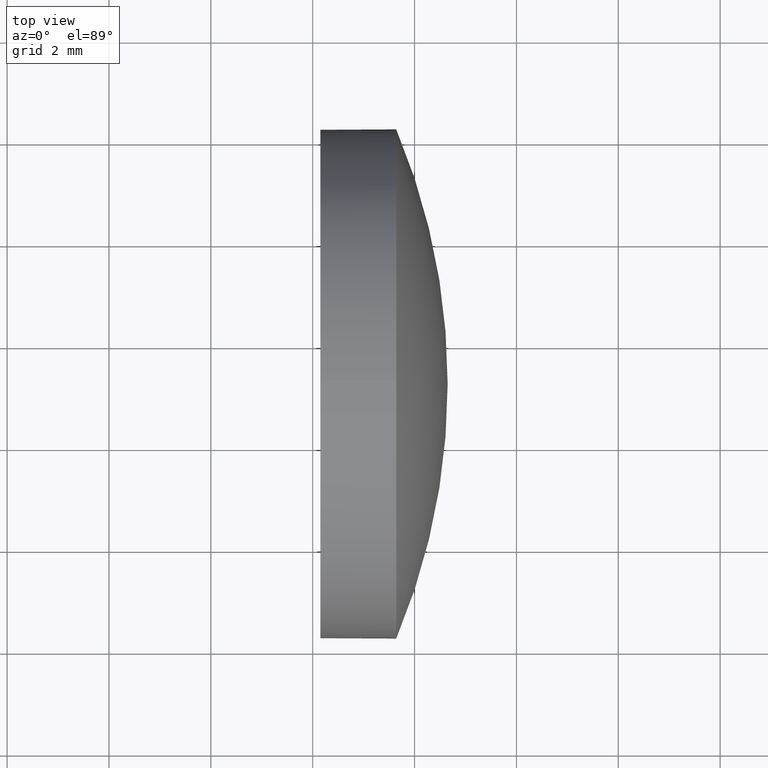
[diagram: clean part render]
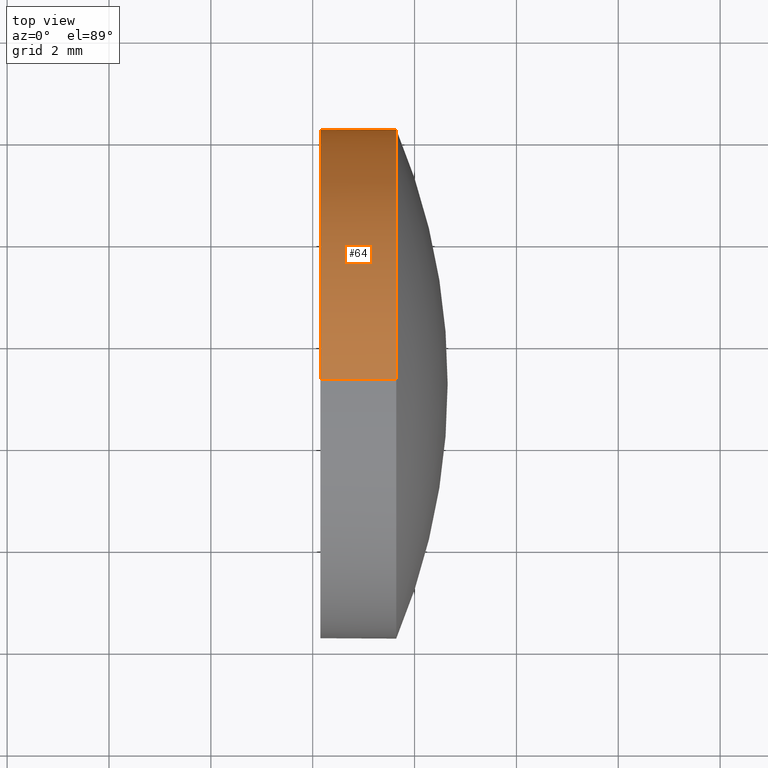
[diagram: same view with one face highlighted and labeled with its STEP entity id]
A machine part, top view. The second image highlights one B-rep face of the part: STEP entity #64.
In plain terms, the highlighted cylindrical surface (partial cylindrical patch) has radius 5 mm, axis along (-1, -0, -0).
Its self-contained STEP definition (entity closure, byte-faithful):
#6 = ORIENTED_EDGE ( 'NONE', *, *, #93, .F. ) ;
#7 = VERTEX_POINT ( 'NONE', #115 ) ;
#10 = DIRECTION ( 'NONE',  ( -1.000000000000000000, -0.0000000000000000000, -0.0000000000000000000 ) ) ;
#12 = CARTESIAN_POINT ( 'NONE',  ( 661.3521818429206900, 171.2161113071353800, 0.0000000000000000000 ) ) ;
#16 = CARTESIAN_POINT ( 'NONE',  ( 663.6398540969860300, 171.2161113071353800, 0.0000000000000000000 ) ) ;
#24 = DIRECTION ( 'NONE',  ( 0.0000000000000000000, 0.0000000000000000000, 1.000000000000000000 ) ) ;
#25 = ORIENTED_EDGE ( 'NONE', *, *, #120, .T. ) ;
#35 = AXIS2_PLACEMENT_3D ( 'NONE', #16, #116, #121 ) ;
#38 = AXIS2_PLACEMENT_3D ( 'NONE', #12, #66, #24 ) ;
#41 = CARTESIAN_POINT ( 'NONE',  ( 662.1498540969860200, 171.2161113071353800, 5.000000000000004400 ) ) ;
#42 = EDGE_CURVE ( 'NONE', #162, #44, #147, .T. ) ;
#44 = VERTEX_POINT ( 'NONE', #41 ) ;
#47 = EDGE_CURVE ( 'NONE', #126, #7, #63, .T. ) ;
#54 = CARTESIAN_POINT ( 'NONE',  ( 661.3521818429206900, 171.2161113071353800, 5.000000000000004400 ) ) ;
#63 = CIRCLE ( 'NONE', #128, 5.000000000000004400 ) ;
#64 = ADVANCED_FACE ( 'NONE', ( #106 ), #130, .T. ) ;
#66 = DIRECTION ( 'NONE',  ( -1.000000000000000000, -0.0000000000000000000, -0.0000000000000000000 ) ) ;
#72 = CIRCLE ( 'NONE', #123, 5.000000000000004400 ) ;
#76 = DIRECTION ( 'NONE',  ( -1.000000000000000000, -0.0000000000000000000, -0.0000000000000000000 ) ) ;
#77 = CIRCLE ( 'NONE', #35, 5.000000000000004400 ) ;
#87 = DIRECTION ( 'NONE',  ( -1.000000000000000000, -0.0000000000000000000, -0.0000000000000000000 ) ) ;
#93 = EDGE_CURVE ( 'NONE', #44, #124, #72, .T. ) ;
#99 = ORIENTED_EDGE ( 'NONE', *, *, #47, .T. ) ;
#104 = CARTESIAN_POINT ( 'NONE',  ( 661.3521818429206900, 171.2161113071353800, -5.000000000000004400 ) ) ;
#106 = FACE_OUTER_BOUND ( 'NONE', #111, .T. ) ;
#111 = EDGE_LOOP ( 'NONE', ( #99, #122, #6, #157, #25 ) ) ;
#114 = LINE ( 'NONE', #104, #151 ) ;
#115 = CARTESIAN_POINT ( 'NONE',  ( 663.6398540969860300, 171.2161113071353800, -5.000000000000004400 ) ) ;
#116 = DIRECTION ( 'NONE',  ( -1.000000000000000000, -0.0000000000000000000, -0.0000000000000000000 ) ) ;
#118 = DIRECTION ( 'NONE',  ( 0.0000000000000000000, 0.0000000000000000000, 1.000000000000000000 ) ) ;
#119 = CARTESIAN_POINT ( 'NONE',  ( 662.1498540969860200, 171.2161113071353800, -5.000000000000004400 ) ) ;
#120 = EDGE_CURVE ( 'NONE', #162, #126, #77, .T. ) ;
#121 = DIRECTION ( 'NONE',  ( 0.0000000000000000000, 0.0000000000000000000, 1.000000000000000000 ) ) ;
#122 = ORIENTED_EDGE ( 'NONE', *, *, #150, .T. ) ;
#123 = AXIS2_PLACEMENT_3D ( 'NONE', #171, #10, #118 ) ;
#124 = VERTEX_POINT ( 'NONE', #119 ) ;
#126 = VERTEX_POINT ( 'NONE', #137 ) ;
#127 = CARTESIAN_POINT ( 'NONE',  ( 663.6398540969860300, 171.2161113071353800, 0.0000000000000000000 ) ) ;
#128 = AXIS2_PLACEMENT_3D ( 'NONE', #127, #142, #173 ) ;
#130 = CYLINDRICAL_SURFACE ( 'NONE', #38, 5.000000000000004400 ) ;
#137 = CARTESIAN_POINT ( 'NONE',  ( 663.6398540969860300, 176.2161113071353800, 6.123233995736657800E-016 ) ) ;
#141 = VECTOR ( 'NONE', #87, 1000.000000000000000 ) ;
#142 = DIRECTION ( 'NONE',  ( -1.000000000000000000, -0.0000000000000000000, -0.0000000000000000000 ) ) ;
#147 = LINE ( 'NONE', #54, #141 ) ;
#150 = EDGE_CURVE ( 'NONE', #7, #124, #114, .T. ) ;
#151 = VECTOR ( 'NONE', #76, 1000.000000000000000 ) ;
#157 = ORIENTED_EDGE ( 'NONE', *, *, #42, .F. ) ;
#162 = VERTEX_POINT ( 'NONE', #176 ) ;
#171 = CARTESIAN_POINT ( 'NONE',  ( 662.1498540969860200, 171.2161113071353800, 0.0000000000000000000 ) ) ;
#173 = DIRECTION ( 'NONE',  ( 0.0000000000000000000, 0.0000000000000000000, 1.000000000000000000 ) ) ;
#176 = CARTESIAN_POINT ( 'NONE',  ( 663.6398540969860300, 171.2161113071353800, 5.000000000000004400 ) ) ;